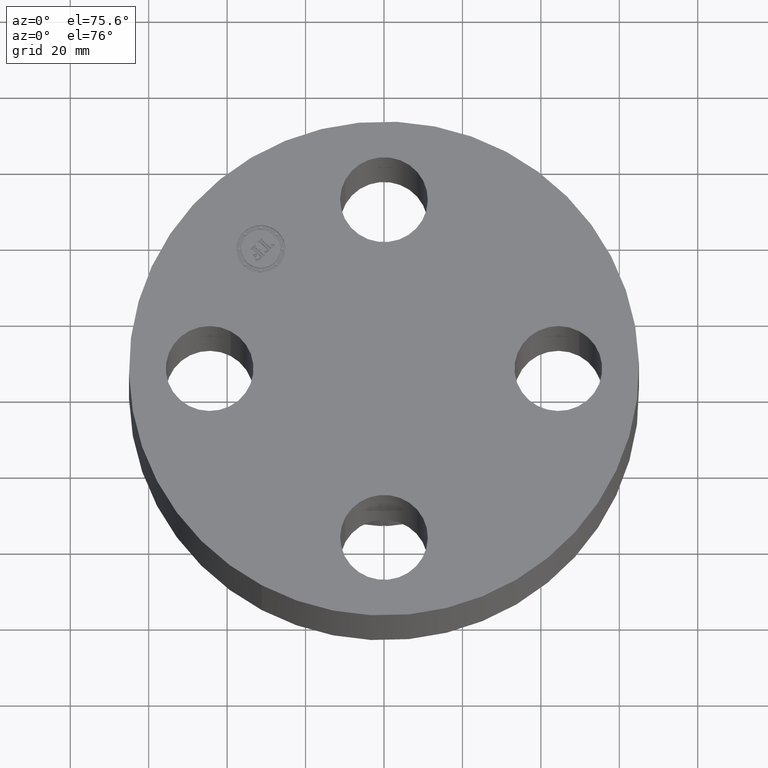
[diagram: clean part render]
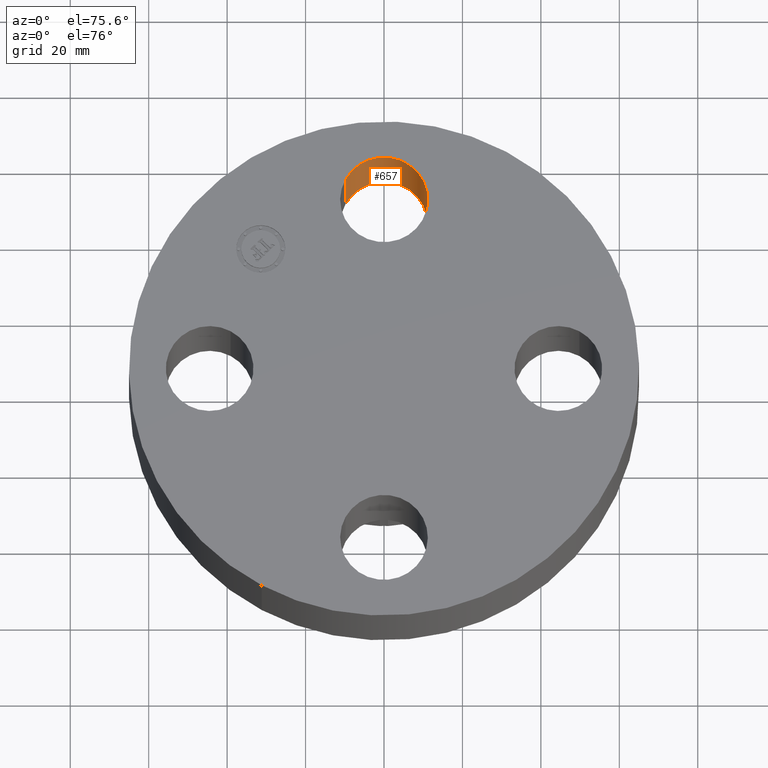
[diagram: same view with one face highlighted and labeled with its STEP entity id]
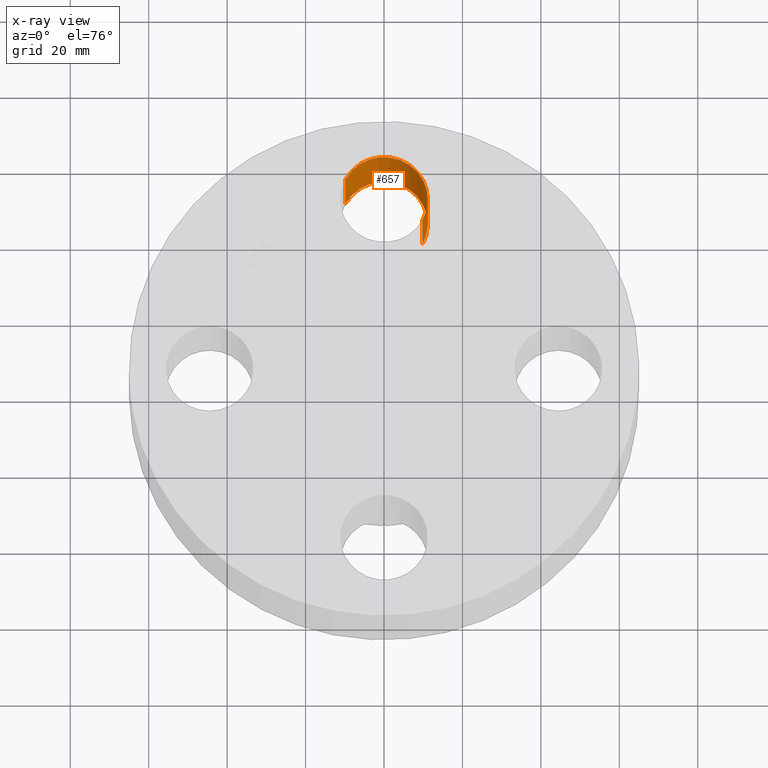
[diagram: x-ray of the same camera — body ghosted, the highlighted face saturated]
A machine part, auxiliary view. The second image highlights one B-rep face of the part: STEP entity #657.
The next image is the same camera in x-ray: the body ghosted, the highlighted face saturated — about 2% of this face is hidden behind the body in this view.
In plain terms, the highlighted cylindrical surface (partial cylindrical patch) has radius 11.176 mm, axis along (0, -0, -1).
Its self-contained STEP definition (entity closure, byte-faithful):
#451=AXIS2_PLACEMENT_3D('Circle Axis2P3D',#449,#450,$) ;
#614=AXIS2_PLACEMENT_3D('Cylinder Axis2P3D',#611,#612,#613) ;
#648=AXIS2_PLACEMENT_3D('Circle Axis2P3D',#646,#647,$) ;
#446=CARTESIAN_POINT('Vertex',(0.386136327233,1.53905276302,0.)) ;
#449=CARTESIAN_POINT('Axis2P3D Location',(-6.99353086378E-017,1.75000000001,0.)) ;
#453=CARTESIAN_POINT('Vertex',(-0.386136327233,1.96094723699,0.)) ;
#611=CARTESIAN_POINT('Axis2P3D Location',(0.,1.75000000001,0.99606299213)) ;
#616=CARTESIAN_POINT('Line Origine',(0.386136327233,1.53905276302,0.500000000002)) ;
#620=CARTESIAN_POINT('Vertex',(0.386136327233,1.53905276302,1.)) ;
#623=CARTESIAN_POINT('Line Origine',(-0.386136327233,1.96094723699,0.500000000002)) ;
#627=CARTESIAN_POINT('Vertex',(-0.386136327233,1.96094723699,1.)) ;
#646=CARTESIAN_POINT('Axis2P3D Location',(0.,1.75000000001,1.)) ;
#450=DIRECTION('Axis2P3D Direction',(0.,0.,-0.0393700787402)) ;
#612=DIRECTION('Axis2P3D Direction',(0.,-0.,-0.0393700787402)) ;
#613=DIRECTION('Axis2P3D XDirection',(-0.0345504945626,0.0188750212049,0.)) ;
#617=DIRECTION('Vector Direction',(0.,0.,-0.0393700787402)) ;
#624=DIRECTION('Vector Direction',(0.,0.,-0.0393700787402)) ;
#647=DIRECTION('Axis2P3D Direction',(0.,-0.,-0.0393700787402)) ;
#618=VECTOR('Line Direction',#617,0.0393700787402) ;
#625=VECTOR('Line Direction',#624,0.0393700787402) ;
#652=ORIENTED_EDGE('',*,*,#629,.F.) ;
#653=ORIENTED_EDGE('',*,*,#455,.T.) ;
#654=ORIENTED_EDGE('',*,*,#622,.T.) ;
#655=ORIENTED_EDGE('',*,*,#650,.F.) ;
#657=ADVANCED_FACE('PartBody',(#656),#615,.F.) ;
#452=CIRCLE('generated circle',#451,0.440000000002) ;
#649=CIRCLE('generated circle',#648,0.440000000002) ;
#615=CYLINDRICAL_SURFACE('generated cylinder',#614,0.440000000002) ;
#455=EDGE_CURVE('',#454,#447,#452,.T.) ;
#622=EDGE_CURVE('',#447,#621,#619,.F.) ;
#629=EDGE_CURVE('',#454,#628,#626,.F.) ;
#650=EDGE_CURVE('',#628,#621,#649,.T.) ;
#651=EDGE_LOOP('',(#652,#653,#654,#655)) ;
#656=FACE_OUTER_BOUND('',#651,.T.) ;
#619=LINE('Line',#616,#618) ;
#626=LINE('Line',#623,#625) ;
#447=VERTEX_POINT('',#446) ;
#454=VERTEX_POINT('',#453) ;
#621=VERTEX_POINT('',#620) ;
#628=VERTEX_POINT('',#627) ;